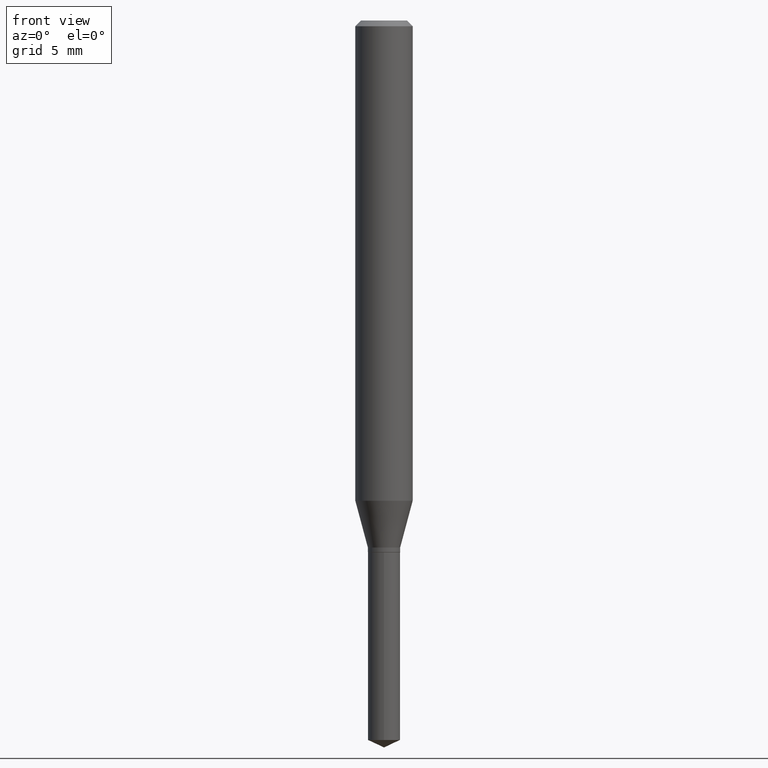
[diagram: clean part render]
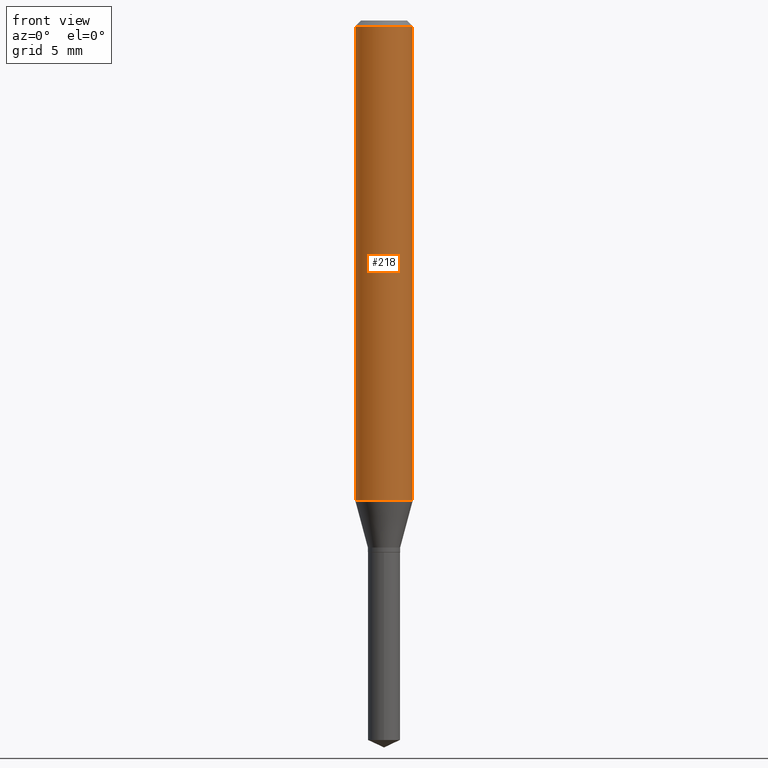
[diagram: same view with one face highlighted and labeled with its STEP entity id]
A machine part, front view. The second image highlights one B-rep face of the part: STEP entity #218.
In plain terms, the highlighted cylindrical surface (edge-blend (fillet) strip) has radius 1.4999 mm, axis along (-0, 0, 1).
Its self-contained STEP definition (entity closure, byte-faithful):
#43 = EDGE_CURVE ( 'NONE', #106, #72, #129, .T. ) ;
#60 = LINE ( 'NONE', #184, #361 ) ;
#63 = DIRECTION ( 'NONE',  ( -2.445468806185136597E-29, 3.491481338843145583E-15, 1.000000000000000000 ) ) ;
#64 = CARTESIAN_POINT ( 'NONE',  ( -0.05904999999999999832, -1.326205491649111683E-15, -0.01181000000000007218 ) ) ;
#68 = DIRECTION ( 'NONE',  ( -2.445468806185136597E-29, 3.491481338843145583E-15, 1.000000000000000000 ) ) ;
#72 = VERTEX_POINT ( 'NONE', #246 ) ;
#82 = ORIENTED_EDGE ( 'NONE', *, *, #131, .F. ) ;
#93 = CARTESIAN_POINT ( 'NONE',  ( 2.888098660104664204E-31, -4.123439461173780263E-17, -0.01181000000000007218 ) ) ;
#106 = VERTEX_POINT ( 'NONE', #64 ) ;
#117 = VERTEX_POINT ( 'NONE', #324 ) ;
#129 = CIRCLE ( 'NONE', #454, 0.05904999999999999832 ) ;
#130 = DIRECTION ( 'NONE',  ( 1.000000000000000000, -6.982962677686266711E-15, 0.000000000000000000 ) ) ;
#131 = EDGE_CURVE ( 'NONE', #273, #106, #177, .T. ) ;
#154 = EDGE_CURVE ( 'NONE', #273, #117, #307, .T. ) ;
#157 = ORIENTED_EDGE ( 'NONE', *, *, #154, .T. ) ;
#177 = LINE ( 'NONE', #445, #408 ) ;
#184 = CARTESIAN_POINT ( 'NONE',  ( 0.05905000000000006077, -4.123439461173744764E-16, 2.879382386107503023E-30 ) ) ;
#191 = ORIENTED_EDGE ( 'NONE', *, *, #43, .F. ) ;
#213 = DIRECTION ( 'NONE',  ( -2.445468806185136877E-29, 3.491481338843145188E-15, 1.000000000000000000 ) ) ;
#218 = ADVANCED_FACE ( 'NONE', ( #380 ), #373, .T. ) ;
#246 = CARTESIAN_POINT ( 'NONE',  ( 0.05904999999999999832, -4.535783407291118600E-16, -0.01181000000000007218 ) ) ;
#273 = VERTEX_POINT ( 'NONE', #461 ) ;
#307 = CIRCLE ( 'NONE', #345, 0.05905000000000011628 ) ;
#324 = CARTESIAN_POINT ( 'NONE',  ( 0.05905000000000011628, -3.862671505736541121E-15, -0.9882130891647225024 ) ) ;
#325 = AXIS2_PLACEMENT_3D ( 'NONE', #488, #63, #337 ) ;
#331 = DIRECTION ( 'NONE',  ( -2.445468806185136877E-29, 3.491481338843145188E-15, 1.000000000000000000 ) ) ;
#337 = DIRECTION ( 'NONE',  ( 1.000000000000000000, -6.982962677686266711E-15, 4.876176775795935793E-29 ) ) ;
#345 = AXIS2_PLACEMENT_3D ( 'NONE', #473, #68, #374 ) ;
#361 = VECTOR ( 'NONE', #331, 39.37007874015748143 ) ;
#373 = CYLINDRICAL_SURFACE ( 'NONE', #325, 0.05905000000000006077 ) ;
#374 = DIRECTION ( 'NONE',  ( 1.000000000000000000, -6.982962677686266711E-15, 0.000000000000000000 ) ) ;
#380 = FACE_OUTER_BOUND ( 'NONE', #428, .T. ) ;
#408 = VECTOR ( 'NONE', #213, 39.37007874015748143 ) ;
#428 = EDGE_LOOP ( 'NONE', ( #82, #157, #463, #191 ) ) ;
#445 = CARTESIAN_POINT ( 'NONE',  ( -0.05905000000000006077, 4.195754854663395916E-16, -2.904631170795524694E-30 ) ) ;
#446 = EDGE_CURVE ( 'NONE', #117, #72, #60, .T. ) ;
#454 = AXIS2_PLACEMENT_3D ( 'NONE', #93, #479, #130 ) ;
#461 = CARTESIAN_POINT ( 'NONE',  ( -0.05905000000000011628, -3.030752074152826708E-15, -0.9882130891647225024 ) ) ;
#463 = ORIENTED_EDGE ( 'NONE', *, *, #446, .T. ) ;
#473 = CARTESIAN_POINT ( 'NONE',  ( 2.416644283416180076E-29, -3.450327559619166201E-15, -0.9882130891647225024 ) ) ;
#479 = DIRECTION ( 'NONE',  ( -2.445468806185136597E-29, 3.491481338843145583E-15, 1.000000000000000000 ) ) ;
#488 = CARTESIAN_POINT ( 'NONE',  ( 0.000000000000000000, 0.000000000000000000, 0.000000000000000000 ) ) ;